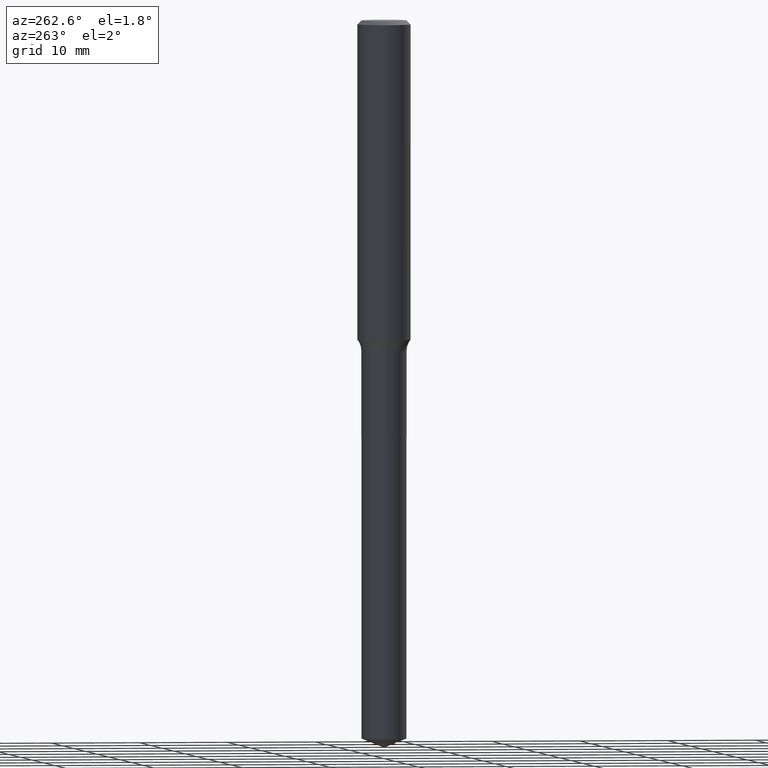
[diagram: clean part render]
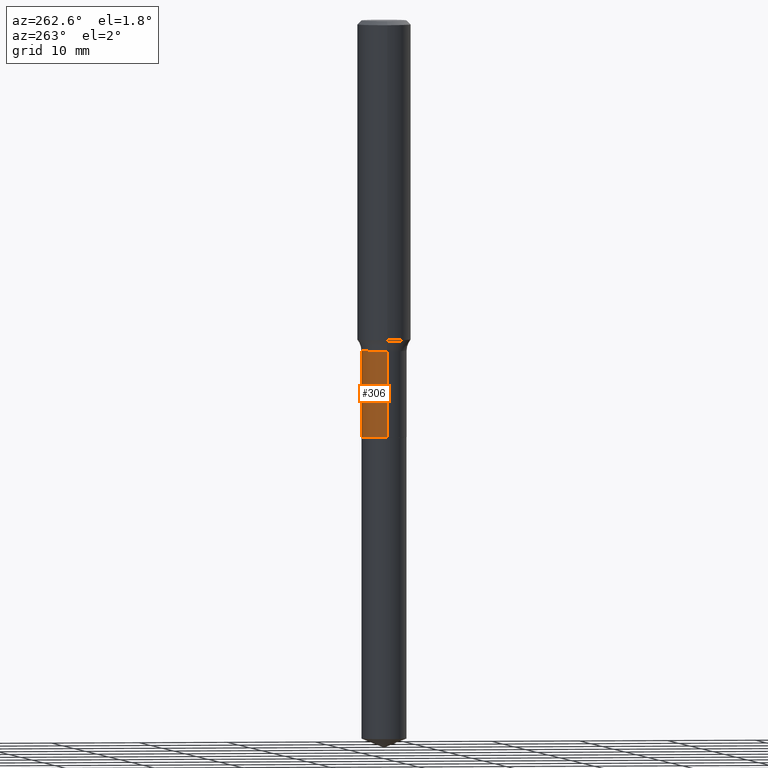
[diagram: same view with one face highlighted and labeled with its STEP entity id]
A machine part, auxiliary view. The second image highlights one B-rep face of the part: STEP entity #306.
In plain terms, the highlighted cylindrical surface (edge-blend (fillet) strip) has radius 2.5502 mm, axis along (-0, 0, 1).
Its self-contained STEP definition (entity closure, byte-faithful):
#27 = CARTESIAN_POINT ( 'NONE',  ( -0.1003999999999999615, -5.074443708697142375E-15, -1.465899999999999981 ) ) ;
#31 = CARTESIAN_POINT ( 'NONE',  ( -0.1003999999999999893, -5.074443708697142375E-15, -1.849500000000000366 ) ) ;
#41 = CYLINDRICAL_SURFACE ( 'NONE', #305, 0.1003999999999999754 ) ;
#47 = DIRECTION ( 'NONE',  ( -2.445468806185136597E-29, 3.491481338843145583E-15, 1.000000000000000000 ) ) ;
#55 = EDGE_LOOP ( 'NONE', ( #236, #431, #410, #330 ) ) ;
#57 = CIRCLE ( 'NONE', #375, 0.1003999999999999893 ) ;
#70 = LINE ( 'NONE', #104, #225 ) ;
#71 = EDGE_CURVE ( 'NONE', #275, #490, #57, .T. ) ;
#76 = CARTESIAN_POINT ( 'NONE',  ( 0.1003999999999999615, -5.819251947449867977E-15, -1.465899999999999981 ) ) ;
#86 = DIRECTION ( 'NONE',  ( 1.000000000000000000, -6.982962677686265133E-15, 0.000000000000000000 ) ) ;
#100 = EDGE_CURVE ( 'NONE', #285, #378, #132, .T. ) ;
#104 = CARTESIAN_POINT ( 'NONE',  ( -0.1003999999999999754, 7.133849067031404116E-16, -4.938610830615923592E-30 ) ) ;
#111 = EDGE_CURVE ( 'NONE', #275, #285, #173, .T. ) ;
#117 = DIRECTION ( 'NONE',  ( 1.000000000000000000, -6.982962677686263555E-15, 0.000000000000000000 ) ) ;
#131 = DIRECTION ( 'NONE',  ( -2.445468806185136877E-29, 3.491481338843145188E-15, 1.000000000000000000 ) ) ;
#132 = CIRCLE ( 'NONE', #199, 0.1003999999999999615 ) ;
#153 = DIRECTION ( 'NONE',  ( 1.000000000000000000, -6.982962677686266711E-15, 4.876176775795935232E-29 ) ) ;
#173 = LINE ( 'NONE', #409, #262 ) ;
#193 = CARTESIAN_POINT ( 'NONE',  ( 0.000000000000000000, 0.000000000000000000, 0.000000000000000000 ) ) ;
#197 = FACE_OUTER_BOUND ( 'NONE', #55, .T. ) ;
#199 = AXIS2_PLACEMENT_3D ( 'NONE', #201, #351, #86 ) ;
#201 = CARTESIAN_POINT ( 'NONE',  ( 3.584812722986791865E-29, -5.118162494610166900E-15, -1.465899999999999981 ) ) ;
#225 = VECTOR ( 'NONE', #412, 39.37007874015748143 ) ;
#236 = ORIENTED_EDGE ( 'NONE', *, *, #71, .T. ) ;
#262 = VECTOR ( 'NONE', #131, 39.37007874015748143 ) ;
#275 = VERTEX_POINT ( 'NONE', #381 ) ;
#285 = VERTEX_POINT ( 'NONE', #76 ) ;
#305 = AXIS2_PLACEMENT_3D ( 'NONE', #193, #345, #153 ) ;
#306 = ADVANCED_FACE ( 'NONE', ( #197 ), #41, .T. ) ;
#330 = ORIENTED_EDGE ( 'NONE', *, *, #111, .F. ) ;
#345 = DIRECTION ( 'NONE',  ( -2.445468806185136597E-29, 3.491481338843145583E-15, 1.000000000000000000 ) ) ;
#351 = DIRECTION ( 'NONE',  ( -2.445468806185136597E-29, 3.491481338843145583E-15, 1.000000000000000000 ) ) ;
#375 = AXIS2_PLACEMENT_3D ( 'NONE', #387, #47, #117 ) ;
#378 = VERTEX_POINT ( 'NONE', #27 ) ;
#381 = CARTESIAN_POINT ( 'NONE',  ( 0.1003999999999999893, -7.158584189030099157E-15, -1.849500000000000366 ) ) ;
#387 = CARTESIAN_POINT ( 'NONE',  ( 4.522894557039411136E-29, -6.457494736190398870E-15, -1.849500000000000366 ) ) ;
#409 = CARTESIAN_POINT ( 'NONE',  ( 0.1003999999999999754, -7.010894528397009782E-16, 4.895681482899117754E-30 ) ) ;
#410 = ORIENTED_EDGE ( 'NONE', *, *, #100, .F. ) ;
#412 = DIRECTION ( 'NONE',  ( -2.445468806185136877E-29, 3.491481338843145188E-15, 1.000000000000000000 ) ) ;
#431 = ORIENTED_EDGE ( 'NONE', *, *, #439, .T. ) ;
#439 = EDGE_CURVE ( 'NONE', #490, #378, #70, .T. ) ;
#490 = VERTEX_POINT ( 'NONE', #31 ) ;